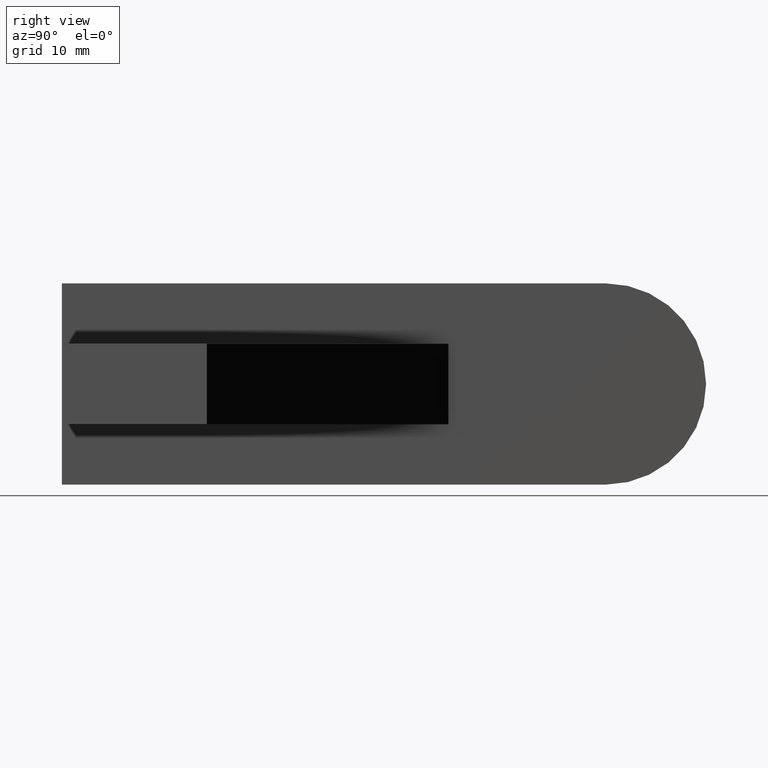
[diagram: clean part render]
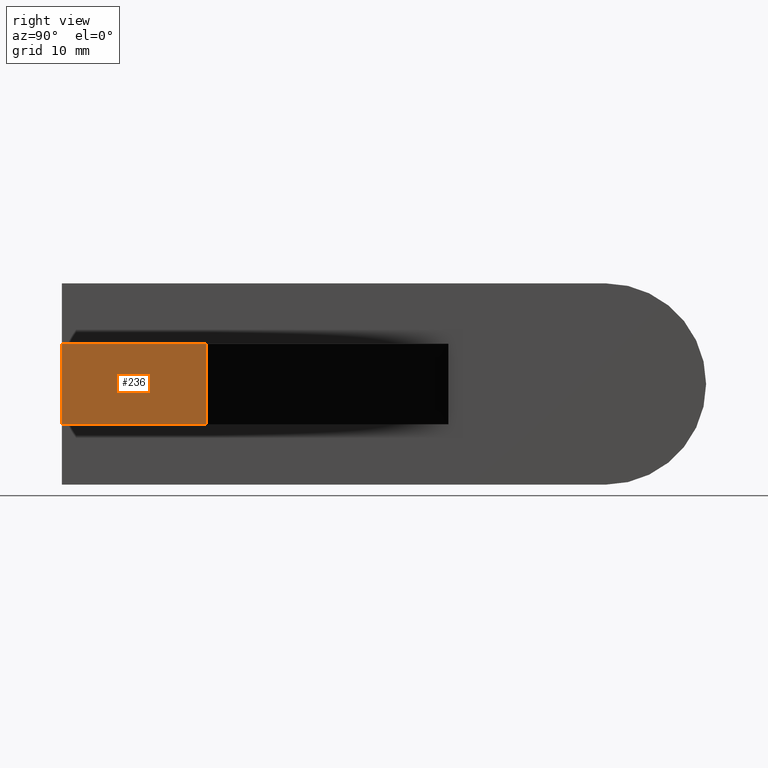
[diagram: same view with one face highlighted and labeled with its STEP entity id]
A machine part, right view. The second image highlights one B-rep face of the part: STEP entity #236.
In plain terms, the highlighted planar face has unit normal (1, 0, 0).
Its self-contained STEP definition (entity closure, byte-faithful):
#29=FACE_OUTER_BOUND('',#43,.T.);
#43=EDGE_LOOP('',(#200,#201,#202,#203));
#62=LINE('',#372,#90);
#72=LINE('',#390,#100);
#73=LINE('',#393,#101);
#74=LINE('',#394,#102);
#90=VECTOR('',#308,10.);
#100=VECTOR('',#324,10.);
#101=VECTOR('',#327,10.);
#102=VECTOR('',#328,10.);
#116=VERTEX_POINT('',#370);
#117=VERTEX_POINT('',#371);
#122=VERTEX_POINT('',#388);
#123=VERTEX_POINT('',#392);
#140=EDGE_CURVE('',#116,#117,#62,.T.);
#150=EDGE_CURVE('',#122,#117,#72,.T.);
#151=EDGE_CURVE('',#122,#123,#73,.T.);
#152=EDGE_CURVE('',#116,#123,#74,.T.);
#200=ORIENTED_EDGE('',*,*,#151,.T.);
#201=ORIENTED_EDGE('',*,*,#152,.F.);
#202=ORIENTED_EDGE('',*,*,#140,.T.);
#203=ORIENTED_EDGE('',*,*,#150,.F.);
#223=PLANE('',#271);
#236=ADVANCED_FACE('',(#29),#223,.T.);
#271=AXIS2_PLACEMENT_3D('',#391,#325,#326);
#308=DIRECTION('',(-1.85037170770859E-16,1.,0.));
#324=DIRECTION('',(0.,0.,-1.));
#325=DIRECTION('center_axis',(1.,1.85037170770859E-16,0.));
#326=DIRECTION('ref_axis',(0.,0.,-1.));
#327=DIRECTION('',(1.85037170770859E-16,-1.,0.));
#328=DIRECTION('',(0.,0.,1.));
#370=CARTESIAN_POINT('',(2.22044604925031E-15,-4.05176809033237E-16,-5.));
#371=CARTESIAN_POINT('',(-1.11022302462516E-15,18.,-5.));
#372=CARTESIAN_POINT('',(-1.11022302462516E-15,18.,-5.));
#388=CARTESIAN_POINT('',(-1.11022302462516E-15,18.,5.));
#390=CARTESIAN_POINT('',(-1.11022302462516E-15,18.,0.));
#391=CARTESIAN_POINT('Origin',(-1.11022302462516E-15,18.,0.));
#392=CARTESIAN_POINT('',(2.22044604925031E-15,-4.05176809033237E-16,5.));
#393=CARTESIAN_POINT('',(-1.11022302462516E-15,18.,5.));
#394=CARTESIAN_POINT('',(2.22044604925031E-15,-4.05176809033237E-16,0.));